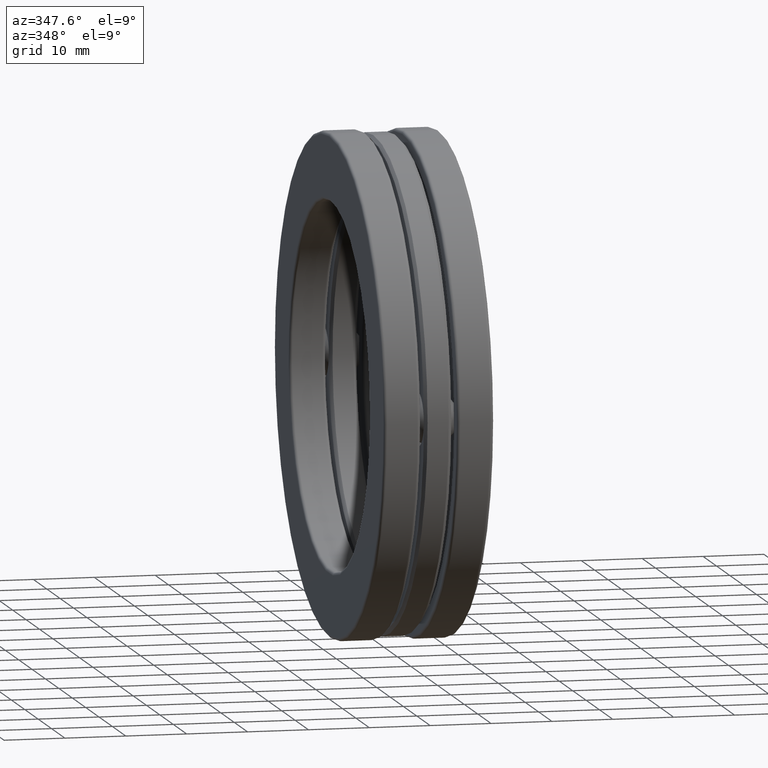
[diagram: clean part render]
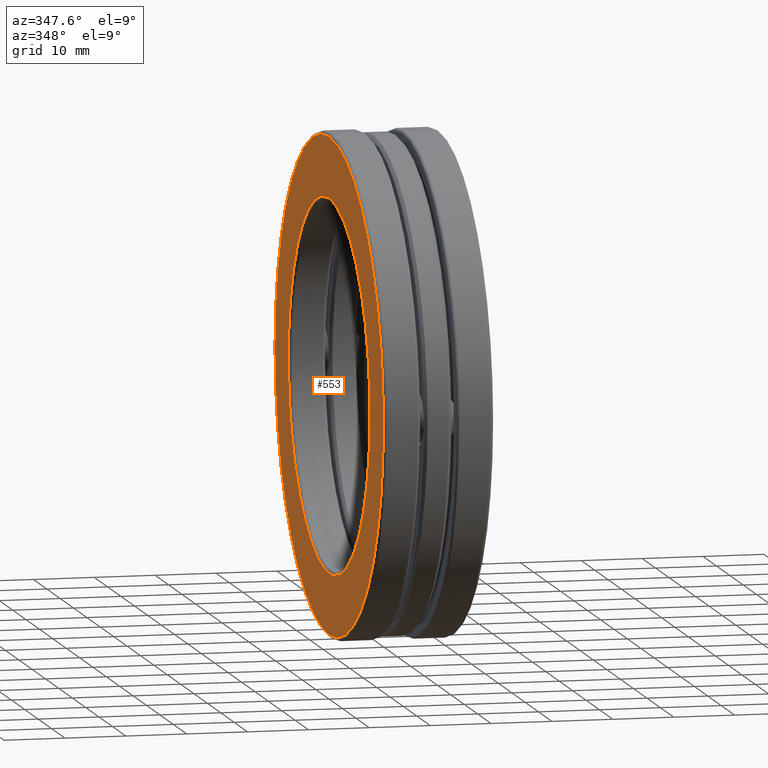
[diagram: same view with one face highlighted and labeled with its STEP entity id]
A machine part, auxiliary view. The second image highlights one B-rep face of the part: STEP entity #553.
In plain terms, the highlighted planar face has unit normal (1, 0, 0).
Its self-contained STEP definition (entity closure, byte-faithful):
#26 = EDGE_CURVE ( 'NONE', #719, #719, #526, .T. ) ;
#42 = CARTESIAN_POINT ( 'NONE',  ( -0.3544999999999999800, 0.0000000000000000000, 1.594000000000000100 ) ) ;
#62 = ORIENTED_EDGE ( 'NONE', *, *, #26, .F. ) ;
#105 = ORIENTED_EDGE ( 'NONE', *, *, #253, .T. ) ;
#150 = CARTESIAN_POINT ( 'NONE',  ( -0.3544999999999999800, 0.0000000000000000000, 0.0000000000000000000 ) ) ;
#203 = CARTESIAN_POINT ( 'NONE',  ( -0.3544999999999999300, 0.0000000000000000000, 1.201000000000000100 ) ) ;
#228 = CARTESIAN_POINT ( 'NONE',  ( -0.3544999999999999300, 0.0000000000000000000, 0.0000000000000000000 ) ) ;
#235 = EDGE_LOOP ( 'NONE', ( #62 ) ) ;
#253 = EDGE_CURVE ( 'NONE', #743, #743, #478, .T. ) ;
#439 = AXIS2_PLACEMENT_3D ( 'NONE', #150, #791, #895 ) ;
#478 = CIRCLE ( 'NONE', #439, 1.594000000000000100 ) ;
#491 = AXIS2_PLACEMENT_3D ( 'NONE', #768, #930, #862 ) ;
#526 = CIRCLE ( 'NONE', #849, 1.201000000000000100 ) ;
#553 = ADVANCED_FACE ( 'NONE', ( #560, #787 ), #1008, .F. ) ;
#560 = FACE_BOUND ( 'NONE', #235, .T. ) ;
#714 = EDGE_LOOP ( 'NONE', ( #105 ) ) ;
#719 = VERTEX_POINT ( 'NONE', #203 ) ;
#743 = VERTEX_POINT ( 'NONE', #42 ) ;
#766 = DIRECTION ( 'NONE',  ( -1.000000000000000000, -0.0000000000000000000, -0.0000000000000000000 ) ) ;
#768 = CARTESIAN_POINT ( 'NONE',  ( -0.3544999999999999800, -6.160560520063490800E-017, 0.0000000000000000000 ) ) ;
#787 = FACE_OUTER_BOUND ( 'NONE', #714, .T. ) ;
#791 = DIRECTION ( 'NONE',  ( -1.000000000000000000, -0.0000000000000000000, -0.0000000000000000000 ) ) ;
#849 = AXIS2_PLACEMENT_3D ( 'NONE', #228, #766, #1003 ) ;
#862 = DIRECTION ( 'NONE',  ( 0.0000000000000000000, 0.0000000000000000000, -1.000000000000000000 ) ) ;
#895 = DIRECTION ( 'NONE',  ( 0.0000000000000000000, 0.0000000000000000000, 1.000000000000000000 ) ) ;
#930 = DIRECTION ( 'NONE',  ( 1.000000000000000000, 0.0000000000000000000, 0.0000000000000000000 ) ) ;
#1003 = DIRECTION ( 'NONE',  ( 0.0000000000000000000, 0.0000000000000000000, 1.000000000000000000 ) ) ;
#1008 = PLANE ( 'NONE',  #491 ) ;